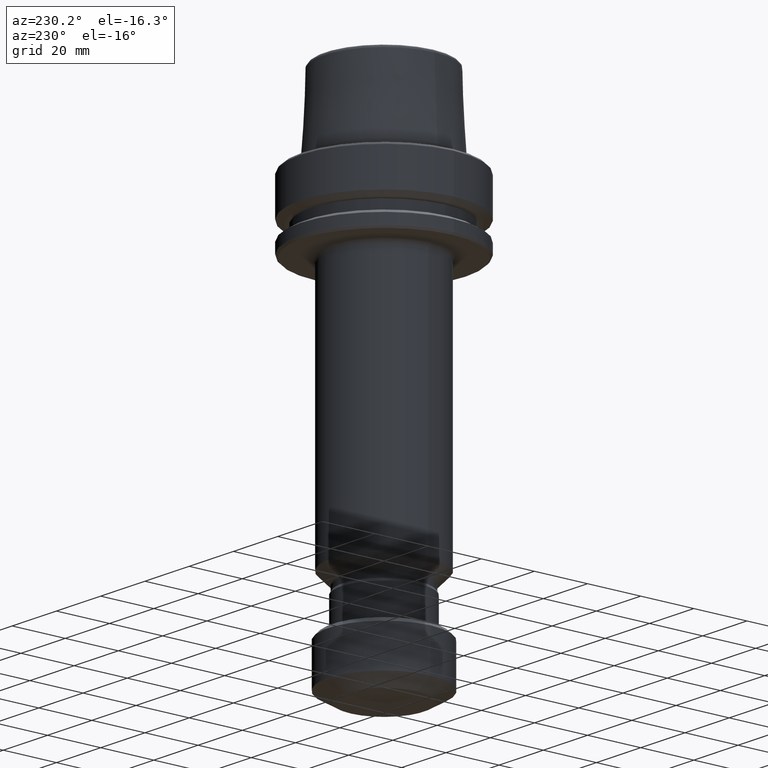
[diagram: clean part render]
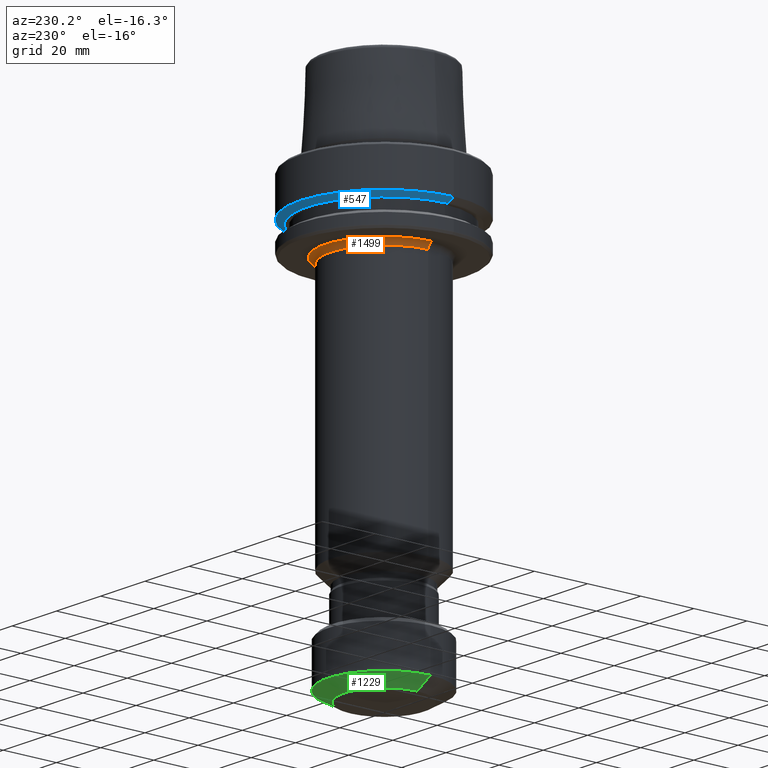
[diagram: same view with three faces highlighted in distinct colors, each labeled with its STEP entity id]
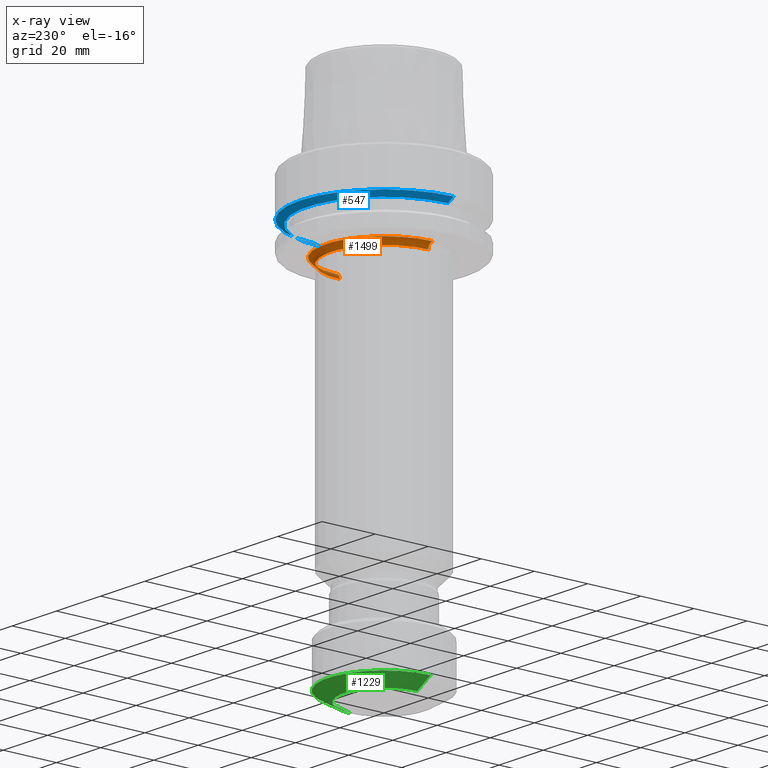
[diagram: x-ray of the same camera — body ghosted, the three highlighted faces saturated]
A machine part, auxiliary view with three faces highlighted in distinct colors.
The next image is the same camera in x-ray (body ghosted, the three faces saturated) — at least one of them is partly hidden behind the body in this view.
Their STEP definitions:

[orange] entity #1499 — the highlighted toroidal blend (fillet) surface has major radius 22 mm and minor (blend) radius 2 mm.
#40 = VERTEX_POINT ( 'NONE', #271 ) ;
#58 = DIRECTION ( 'NONE',  ( -1.000000000000000000, 0.0000000000000000000, 0.0000000000000000000 ) ) ;
#69 = DIRECTION ( 'NONE',  ( 0.0000000000000000000, 0.0000000000000000000, -1.000000000000000000 ) ) ;
#76 = EDGE_CURVE ( 'NONE', #40, #1441, #467, .T. ) ;
#92 = TOROIDAL_SURFACE ( 'NONE', #1073, 22.00000000000000000, 2.000000000000000000 ) ;
#103 = CARTESIAN_POINT ( 'NONE',  ( 20.00000000000000000, 0.0000000000000000000, -27.99999999999999600 ) ) ;
#120 = CIRCLE ( 'NONE', #390, 2.000000000000001800 ) ;
#173 = DIRECTION ( 'NONE',  ( -1.000000000000000000, 0.0000000000000000000, 0.0000000000000000000 ) ) ;
#197 = CARTESIAN_POINT ( 'NONE',  ( -22.00000000000000000, 0.0000000000000000000, -26.00000000000000000 ) ) ;
#204 = ORIENTED_EDGE ( 'NONE', *, *, #305, .F. ) ;
#218 = CARTESIAN_POINT ( 'NONE',  ( 22.00000000000000000, 2.694222958124176800E-015, -27.99999999999999600 ) ) ;
#239 = AXIS2_PLACEMENT_3D ( 'NONE', #1214, #1549, #173 ) ;
#257 = AXIS2_PLACEMENT_3D ( 'NONE', #788, #930, #924 ) ;
#271 = CARTESIAN_POINT ( 'NONE',  ( 22.00000000000000000, 2.694222958124176800E-015, -26.00000000000000000 ) ) ;
#305 = EDGE_CURVE ( 'NONE', #1493, #40, #120, .T. ) ;
#370 = EDGE_CURVE ( 'NONE', #1350, #1493, #1136, .T. ) ;
#390 = AXIS2_PLACEMENT_3D ( 'NONE', #218, #493, #495 ) ;
#467 = CIRCLE ( 'NONE', #239, 22.00000000000000000 ) ;
#493 = DIRECTION ( 'NONE',  ( -1.224646799147353200E-016, 1.000000000000000000, 0.0000000000000000000 ) ) ;
#495 = DIRECTION ( 'NONE',  ( -1.000000000000000000, -1.224646799147351500E-016, 0.0000000000000000000 ) ) ;
#552 = CARTESIAN_POINT ( 'NONE',  ( 0.0000000000000000000, 0.0000000000000000000, -27.99999999999999600 ) ) ;
#557 = EDGE_CURVE ( 'NONE', #1350, #1441, #1219, .T. ) ;
#607 = FACE_OUTER_BOUND ( 'NONE', #1079, .T. ) ;
#670 = AXIS2_PLACEMENT_3D ( 'NONE', #552, #1100, #1111 ) ;
#788 = CARTESIAN_POINT ( 'NONE',  ( -22.00000000000000000, 0.0000000000000000000, -27.99999999999999600 ) ) ;
#797 = ORIENTED_EDGE ( 'NONE', *, *, #557, .T. ) ;
#897 = ORIENTED_EDGE ( 'NONE', *, *, #76, .F. ) ;
#903 = ORIENTED_EDGE ( 'NONE', *, *, #370, .F. ) ;
#924 = DIRECTION ( 'NONE',  ( 0.0000000000000000000, 0.0000000000000000000, -1.000000000000000000 ) ) ;
#930 = DIRECTION ( 'NONE',  ( -0.0000000000000000000, -1.000000000000000000, -0.0000000000000000000 ) ) ;
#1073 = AXIS2_PLACEMENT_3D ( 'NONE', #1425, #69, #58 ) ;
#1079 = EDGE_LOOP ( 'NONE', ( #204, #903, #797, #897 ) ) ;
#1100 = DIRECTION ( 'NONE',  ( 0.0000000000000000000, 0.0000000000000000000, -1.000000000000000000 ) ) ;
#1111 = DIRECTION ( 'NONE',  ( -1.000000000000000000, 0.0000000000000000000, 0.0000000000000000000 ) ) ;
#1136 = CIRCLE ( 'NONE', #670, 20.00000000000000000 ) ;
#1214 = CARTESIAN_POINT ( 'NONE',  ( 0.0000000000000000000, 0.0000000000000000000, -26.00000000000000400 ) ) ;
#1219 = CIRCLE ( 'NONE', #257, 2.000000000000001800 ) ;
#1299 = CARTESIAN_POINT ( 'NONE',  ( -20.00000000000000000, 2.449293598294706500E-015, -27.99999999999999600 ) ) ;
#1350 = VERTEX_POINT ( 'NONE', #1299 ) ;
#1425 = CARTESIAN_POINT ( 'NONE',  ( 0.0000000000000000000, 0.0000000000000000000, -27.99999999999999600 ) ) ;
#1441 = VERTEX_POINT ( 'NONE', #197 ) ;
#1493 = VERTEX_POINT ( 'NONE', #103 ) ;
#1499 = ADVANCED_FACE ( 'NONE', ( #607 ), #92, .F. ) ;
#1549 = DIRECTION ( 'NONE',  ( -0.0000000000000000000, -0.0000000000000000000, 1.000000000000000000 ) ) ;

[blue] entity #547 — the highlighted conical surface has half-angle 60 deg.
#80 = ORIENTED_EDGE ( 'NONE', *, *, #1231, .F. ) ;
#113 = VECTOR ( 'NONE', #611, 1000.000000000000000 ) ;
#121 = ORIENTED_EDGE ( 'NONE', *, *, #1357, .F. ) ;
#134 = LINE ( 'NONE', #153, #113 ) ;
#153 = CARTESIAN_POINT ( 'NONE',  ( -31.50000000000000000, 3.857637417314162700E-015, -14.62250092524070100 ) ) ;
#177 = AXIS2_PLACEMENT_3D ( 'NONE', #803, #769, #707 ) ;
#178 = DIRECTION ( 'NONE',  ( -0.0000000000000000000, -0.0000000000000000000, 1.000000000000000000 ) ) ;
#189 = CIRCLE ( 'NONE', #799, 31.50000000000000000 ) ;
#201 = ORIENTED_EDGE ( 'NONE', *, *, #914, .T. ) ;
#259 = CARTESIAN_POINT ( 'NONE',  ( 0.0000000000000000000, 0.0000000000000000000, -14.62250092524070100 ) ) ;
#292 = VERTEX_POINT ( 'NONE', #301 ) ;
#301 = CARTESIAN_POINT ( 'NONE',  ( -28.94089653438085100, 3.700937523921292900E-015, -16.10000000000001600 ) ) ;
#491 = EDGE_LOOP ( 'NONE', ( #201, #1491, #80, #121 ) ) ;
#543 = DIRECTION ( 'NONE',  ( 1.000000000000000000, 0.0000000000000000000, 0.0000000000000000000 ) ) ;
#547 = ADVANCED_FACE ( 'NONE', ( #957 ), #885, .T. ) ;
#572 = VERTEX_POINT ( 'NONE', #936 ) ;
#611 = DIRECTION ( 'NONE',  ( -0.8660254037844389300, 1.060575238724907300E-016, 0.4999999999999995000 ) ) ;
#640 = VERTEX_POINT ( 'NONE', #1211 ) ;
#707 = DIRECTION ( 'NONE',  ( 1.000000000000000000, 0.0000000000000000000, 0.0000000000000000000 ) ) ;
#709 = CARTESIAN_POINT ( 'NONE',  ( 31.50000000000000000, 0.0000000000000000000, -14.62250092524070100 ) ) ;
#711 = DIRECTION ( 'NONE',  ( 0.8660254037844389300, 0.0000000000000000000, 0.4999999999999995000 ) ) ;
#726 = CARTESIAN_POINT ( 'NONE',  ( 31.50000000000000000, 0.0000000000000000000, -14.62250092524070100 ) ) ;
#741 = CIRCLE ( 'NONE', #1234, 28.94089653438085100 ) ;
#769 = DIRECTION ( 'NONE',  ( -0.0000000000000000000, -0.0000000000000000000, 1.000000000000000000 ) ) ;
#799 = AXIS2_PLACEMENT_3D ( 'NONE', #259, #178, #808 ) ;
#803 = CARTESIAN_POINT ( 'NONE',  ( 0.0000000000000000000, 0.0000000000000000000, -14.62250092524070100 ) ) ;
#808 = DIRECTION ( 'NONE',  ( 1.000000000000000000, 0.0000000000000000000, 0.0000000000000000000 ) ) ;
#870 = DIRECTION ( 'NONE',  ( -0.0000000000000000000, -0.0000000000000000000, 1.000000000000000000 ) ) ;
#885 = CONICAL_SURFACE ( 'NONE', #177, 31.50000000000000000, 1.047197551196598300 ) ;
#914 = EDGE_CURVE ( 'NONE', #640, #292, #741, .T. ) ;
#936 = CARTESIAN_POINT ( 'NONE',  ( -31.50000000000000000, 3.857637417314162700E-015, -14.62250092524070100 ) ) ;
#957 = FACE_OUTER_BOUND ( 'NONE', #491, .T. ) ;
#1030 = CARTESIAN_POINT ( 'NONE',  ( 0.0000000000000000000, 0.0000000000000000000, -16.10000000000001600 ) ) ;
#1211 = CARTESIAN_POINT ( 'NONE',  ( 28.94089653438085100, 0.0000000000000000000, -16.10000000000001600 ) ) ;
#1231 = EDGE_CURVE ( 'NONE', #1308, #572, #189, .T. ) ;
#1234 = AXIS2_PLACEMENT_3D ( 'NONE', #1030, #870, #543 ) ;
#1266 = VECTOR ( 'NONE', #711, 1000.000000000000000 ) ;
#1308 = VERTEX_POINT ( 'NONE', #709 ) ;
#1320 = LINE ( 'NONE', #726, #1266 ) ;
#1357 = EDGE_CURVE ( 'NONE', #640, #1308, #1320, .T. ) ;
#1453 = EDGE_CURVE ( 'NONE', #292, #572, #134, .T. ) ;
#1491 = ORIENTED_EDGE ( 'NONE', *, *, #1453, .T. ) ;

[green] entity #1229 — the highlighted conical surface has half-angle 60 deg.
#60 = VECTOR ( 'NONE', #1176, 999.9999999999998900 ) ;
#112 = DIRECTION ( 'NONE',  ( 1.000000000000000000, 0.0000000000000000000, 0.0000000000000000000 ) ) ;
#138 = CIRCLE ( 'NONE', #881, 21.00000000000000000 ) ;
#146 = CONICAL_SURFACE ( 'NONE', #710, 15.00000000000000000, 1.047197551196602700 ) ;
#260 = ORIENTED_EDGE ( 'NONE', *, *, #601, .F. ) ;
#274 = CARTESIAN_POINT ( 'NONE',  ( 0.0000000000000000000, 0.0000000000000000000, -160.0000000000000000 ) ) ;
#334 = CARTESIAN_POINT ( 'NONE',  ( 0.0000000000000000000, 0.0000000000000000000, -160.0000000000000000 ) ) ;
#409 = CARTESIAN_POINT ( 'NONE',  ( -21.00000000000000000, 2.571758278209441700E-015, -156.5358983848622900 ) ) ;
#470 = VERTEX_POINT ( 'NONE', #1587 ) ;
#477 = CARTESIAN_POINT ( 'NONE',  ( 21.00000000000000000, 0.0000000000000000000, -156.5358983848622900 ) ) ;
#502 = DIRECTION ( 'NONE',  ( 0.8660254037844411500, 0.0000000000000000000, 0.4999999999999957300 ) ) ;
#538 = FACE_OUTER_BOUND ( 'NONE', #1363, .T. ) ;
#601 = EDGE_CURVE ( 'NONE', #1542, #918, #138, .T. ) ;
#629 = DIRECTION ( 'NONE',  ( 1.000000000000000000, 0.0000000000000000000, 0.0000000000000000000 ) ) ;
#659 = EDGE_CURVE ( 'NONE', #470, #918, #1077, .T. ) ;
#710 = AXIS2_PLACEMENT_3D ( 'NONE', #334, #770, #629 ) ;
#770 = DIRECTION ( 'NONE',  ( -0.0000000000000000000, -0.0000000000000000000, 1.000000000000000000 ) ) ;
#782 = CIRCLE ( 'NONE', #1082, 15.00000000000000000 ) ;
#839 = CARTESIAN_POINT ( 'NONE',  ( 15.00000000000000000, 0.0000000000000000000, -160.0000000000000000 ) ) ;
#851 = ORIENTED_EDGE ( 'NONE', *, *, #871, .T. ) ;
#871 = EDGE_CURVE ( 'NONE', #1156, #470, #782, .T. ) ;
#879 = CARTESIAN_POINT ( 'NONE',  ( 15.00000000000000000, 0.0000000000000000000, -160.0000000000000000 ) ) ;
#881 = AXIS2_PLACEMENT_3D ( 'NONE', #1508, #1442, #1429 ) ;
#918 = VERTEX_POINT ( 'NONE', #409 ) ;
#1077 = LINE ( 'NONE', #1533, #60 ) ;
#1082 = AXIS2_PLACEMENT_3D ( 'NONE', #274, #1488, #112 ) ;
#1101 = EDGE_CURVE ( 'NONE', #1156, #1542, #1209, .T. ) ;
#1156 = VERTEX_POINT ( 'NONE', #879 ) ;
#1171 = ORIENTED_EDGE ( 'NONE', *, *, #1101, .F. ) ;
#1176 = DIRECTION ( 'NONE',  ( -0.8660254037844411500, 1.060575238724910100E-016, 0.4999999999999957300 ) ) ;
#1209 = LINE ( 'NONE', #839, #1547 ) ;
#1229 = ADVANCED_FACE ( 'NONE', ( #538 ), #146, .T. ) ;
#1261 = ORIENTED_EDGE ( 'NONE', *, *, #659, .T. ) ;
#1363 = EDGE_LOOP ( 'NONE', ( #851, #1261, #260, #1171 ) ) ;
#1429 = DIRECTION ( 'NONE',  ( 1.000000000000000000, 0.0000000000000000000, 0.0000000000000000000 ) ) ;
#1442 = DIRECTION ( 'NONE',  ( -0.0000000000000000000, -0.0000000000000000000, 1.000000000000000000 ) ) ;
#1488 = DIRECTION ( 'NONE',  ( -0.0000000000000000000, -0.0000000000000000000, 1.000000000000000000 ) ) ;
#1508 = CARTESIAN_POINT ( 'NONE',  ( 0.0000000000000000000, 0.0000000000000000000, -156.5358983848622900 ) ) ;
#1533 = CARTESIAN_POINT ( 'NONE',  ( -15.00000000000000000, 1.836970198721029600E-015, -160.0000000000000000 ) ) ;
#1542 = VERTEX_POINT ( 'NONE', #477 ) ;
#1547 = VECTOR ( 'NONE', #502, 999.9999999999998900 ) ;
#1587 = CARTESIAN_POINT ( 'NONE',  ( -15.00000000000000000, 2.204364238465235400E-015, -160.0000000000000000 ) ) ;